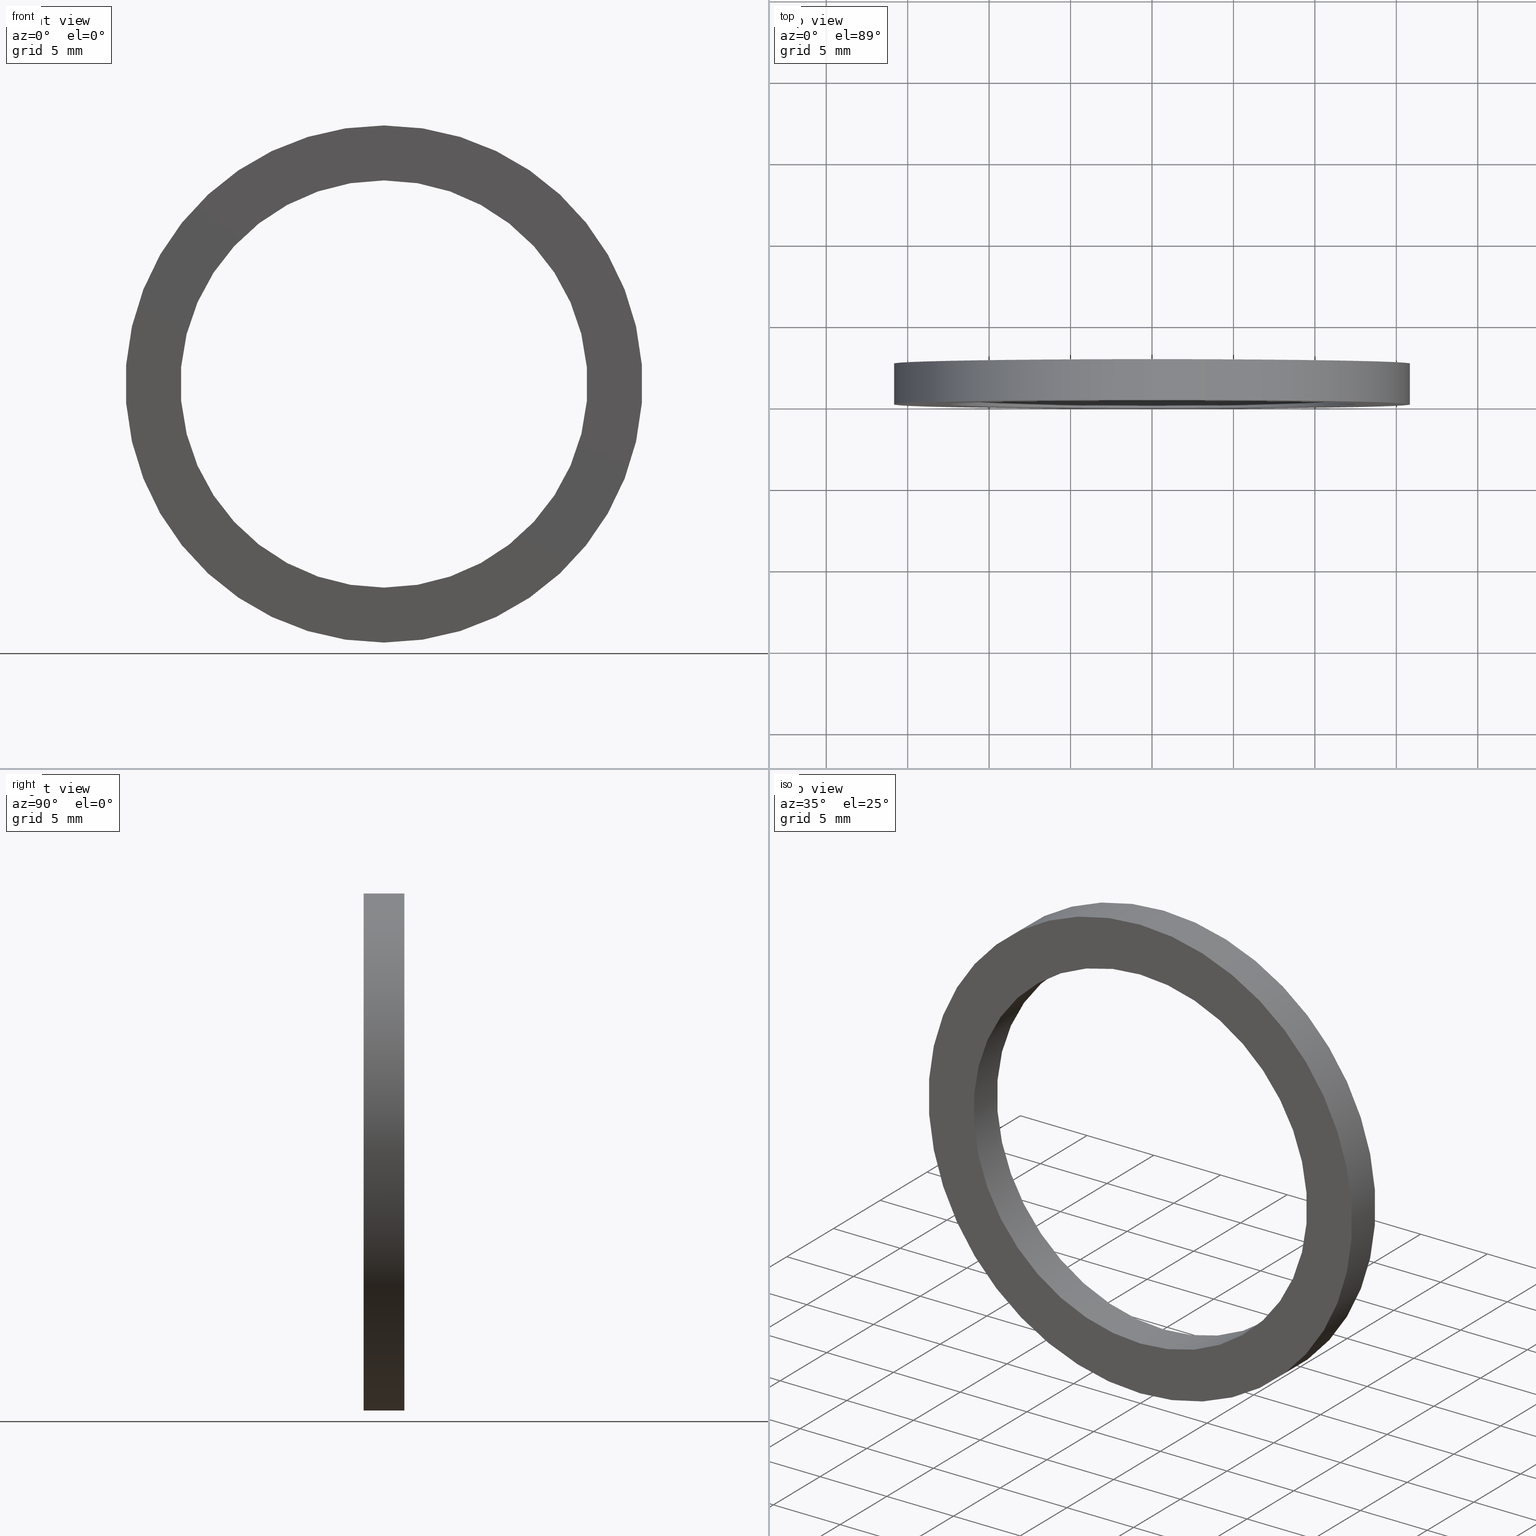
[diagram: canonical four-view strip — front | top / right | iso, engineering-drawing reading convention]
A machine part, canonical four-view strip (front | top / right | iso — engineering-drawing reading convention). The complete STEP part file that produces these views, byte-faithful:
ISO-10303-21;
HEADER;
FILE_DESCRIPTION (( 'STEP AP214' ),
    '1' );
FILE_NAME ('511004.STEP',
    '2019-09-12T08:29:34',
    ( '' ),
    ( '' ),
    'SwSTEP 2.0',
    'SolidWorks 2016',
    '' );
FILE_SCHEMA (( 'AUTOMOTIVE_DESIGN' ));
ENDSEC;

DATA;
#1 = DIRECTION ( 'NONE',  ( -0.0000000000000000000, 1.000000000000000000, -0.0000000000000000000 ) ) ;
#2 = ORIENTED_EDGE ( 'NONE', *, *, #125, .F. ) ;
#3 = SURFACE_STYLE_USAGE ( .BOTH. , #36 ) ;
#4 = CARTESIAN_POINT ( 'NONE',  ( 0.0000000000000000000, 77.14414226561778800, 0.0000000000000000000 ) ) ;
#5 = LINE ( 'NONE', #75, #45 ) ;
#6 =( NAMED_UNIT ( * ) SI_UNIT ( $, .STERADIAN. ) SOLID_ANGLE_UNIT ( ) );
#7 = CARTESIAN_POINT ( 'NONE',  ( 1.944126793646424800E-015, 0.0000000000000000000, -15.87500000000001100 ) ) ;
#8 = AXIS2_PLACEMENT_3D ( 'NONE', #18, #124, #144 ) ;
#9 = APPLICATION_PROTOCOL_DEFINITION ( 'draft international standard', 'automotive_design', 1998, #112 ) ;
#10 = PRESENTATION_LAYER_ASSIGNMENT (  '', '', ( #130 ) ) ;
#11 = ORIENTED_EDGE ( 'NONE', *, *, #232, .F. ) ;
#12 = PRODUCT_DEFINITION_FORMATION_WITH_SPECIFIED_SOURCE ( '�κ�', '', #115, .NOT_KNOWN. ) ;
#13 = VERTEX_POINT ( 'NONE', #177 ) ;
#14 = FACE_OUTER_BOUND ( 'NONE', #170, .T. ) ;
#15 = MECHANICAL_DESIGN_GEOMETRIC_PRESENTATION_REPRESENTATION (  '', ( #230 ), #103 ) ;
#16 =( LENGTH_UNIT ( ) NAMED_UNIT ( * ) SI_UNIT ( .MILLI., .METRE. ) );
#17 = PRESENTATION_LAYER_ASSIGNMENT (  '', '', ( #168 ) ) ;
#18 = CARTESIAN_POINT ( 'NONE',  ( 0.0000000000000000000, 0.0000000000000000000, 0.0000000000000000000 ) ) ;
#19 = PRESENTATION_STYLE_ASSIGNMENT (( #196 ) ) ;
#20 =( NAMED_UNIT ( * ) PLANE_ANGLE_UNIT ( ) SI_UNIT ( $, .RADIAN. ) );
#21 =( NAMED_UNIT ( * ) PLANE_ANGLE_UNIT ( ) SI_UNIT ( $, .RADIAN. ) );
#22 = CARTESIAN_POINT ( 'NONE',  ( 0.0000000000000000000, 0.0000000000000000000, 0.0000000000000000000 ) ) ;
#23 = ORIENTED_EDGE ( 'NONE', *, *, #125, .T. ) ;
#24 = DIRECTION ( 'NONE',  ( 0.0000000000000000000, 0.0000000000000000000, 1.000000000000000000 ) ) ;
#25 = COLOUR_RGB ( '',1.000000000000000000, 1.000000000000000000, 1.000000000000000000 ) ;
#26 = ORIENTED_EDGE ( 'NONE', *, *, #109, .T. ) ;
#27 = ORIENTED_EDGE ( 'NONE', *, *, #46, .T. ) ;
#28 = ADVANCED_FACE ( 'NONE', ( #93 ), #160, .F. ) ;
#29 = ADVANCED_FACE ( 'NONE', ( #14, #152 ), #179, .F. ) ;
#30 = CIRCLE ( 'NONE', #235, 15.87500000000001100 ) ;
#31 = PRESENTATION_LAYER_ASSIGNMENT (  '', '', ( #230 ) ) ;
#32 = ORIENTED_EDGE ( 'NONE', *, *, #148, .T. ) ;
#33 = EDGE_CURVE ( 'NONE', #212, #13, #39, .T. ) ;
#34 = DIRECTION ( 'NONE',  ( -0.0000000000000000000, 1.000000000000000000, -0.0000000000000000000 ) ) ;
#35 = CARTESIAN_POINT ( 'NONE',  ( 0.0000000000000000000, 77.14414226561778800, 12.50000000000001100 ) ) ;
#36 = SURFACE_SIDE_STYLE ('',( #59 ) ) ;
#37 = DIRECTION ( 'NONE',  ( -0.0000000000000000000, 1.000000000000000000, 0.0000000000000000000 ) ) ;
#38 = CARTESIAN_POINT ( 'NONE',  ( 0.0000000000000000000, 2.500000000000002200, 15.87500000000001100 ) ) ;
#39 = CIRCLE ( 'NONE', #172, 12.50000000000001100 ) ;
#40 = PRODUCT_CONTEXT ( 'NONE', #227, 'mechanical' ) ;
#41 =( LENGTH_UNIT ( ) NAMED_UNIT ( * ) SI_UNIT ( .MILLI., .METRE. ) );
#42 = DIRECTION ( 'NONE',  ( -0.0000000000000000000, 1.000000000000000000, -0.0000000000000000000 ) ) ;
#43 = EDGE_LOOP ( 'NONE', ( #199, #26, #117, #102 ) ) ;
#44 = MECHANICAL_DESIGN_GEOMETRIC_PRESENTATION_REPRESENTATION (  '', ( #130 ), #140 ) ;
#45 = VECTOR ( 'NONE', #62, 1000.000000000000000 ) ;
#46 = EDGE_CURVE ( 'NONE', #171, #69, #104, .T. ) ;
#47 = UNCERTAINTY_MEASURE_WITH_UNIT (LENGTH_MEASURE( 1.000000000000000100E-005 ), #77, 'distance_accuracy_value', 'NONE');
#48 = FILL_AREA_STYLE_COLOUR ( '', #200 ) ;
#49 = STYLED_ITEM ( 'NONE', ( #19 ), #28 ) ;
#50 = CIRCLE ( 'NONE', #202, 15.87500000000001100 ) ;
#51 = VERTEX_POINT ( 'NONE', #74 ) ;
#52 = EDGE_LOOP ( 'NONE', ( #153, #23 ) ) ;
#53 = DIRECTION ( 'NONE',  ( 0.0000000000000000000, 0.0000000000000000000, 1.000000000000000000 ) ) ;
#54 = EDGE_CURVE ( 'NONE', #13, #69, #241, .T. ) ;
#55 = DIRECTION ( 'NONE',  ( -0.0000000000000000000, 1.000000000000000000, -0.0000000000000000000 ) ) ;
#56 = EDGE_LOOP ( 'NONE', ( #181, #128 ) ) ;
#57 =( NAMED_UNIT ( * ) SI_UNIT ( $, .STERADIAN. ) SOLID_ANGLE_UNIT ( ) );
#58 = DIRECTION ( 'NONE',  ( 0.0000000000000000000, 0.0000000000000000000, 1.000000000000000000 ) ) ;
#59 = SURFACE_STYLE_FILL_AREA ( #143 ) ;
#60 = PRODUCT_DEFINITION ( 'δ֪', '', #12, #89 ) ;
#61 = SURFACE_STYLE_USAGE ( .BOTH. , #96 ) ;
#62 = DIRECTION ( 'NONE',  ( -0.0000000000000000000, 1.000000000000000000, -0.0000000000000000000 ) ) ;
#63 = ORIENTED_EDGE ( 'NONE', *, *, #186, .F. ) ;
#64 = FILL_AREA_STYLE_COLOUR ( '', #175 ) ;
#65 = PRESENTATION_STYLE_ASSIGNMENT (( #61 ) ) ;
#66 = CLOSED_SHELL ( 'NONE', ( #193, #173, #29, #236, #101, #28 ) ) ;
#67 = AXIS2_PLACEMENT_3D ( 'NONE', #243, #37, #204 ) ;
#68 = ORIENTED_EDGE ( 'NONE', *, *, #134, .F. ) ;
#69 = VERTEX_POINT ( 'NONE', #185 ) ;
#70 = DIRECTION ( 'NONE',  ( 0.0000000000000000000, -1.000000000000000000, 0.0000000000000000000 ) ) ;
#71 = CIRCLE ( 'NONE', #165, 15.87500000000001100 ) ;
#72 = PRODUCT_RELATED_PRODUCT_CATEGORY ( 'part', '', ( #115 ) ) ;
#73 =( NAMED_UNIT ( * ) PLANE_ANGLE_UNIT ( ) SI_UNIT ( $, .RADIAN. ) );
#74 = CARTESIAN_POINT ( 'NONE',  ( 1.944126793646424800E-015, 2.500000000000002200, -15.87500000000001100 ) ) ;
#75 = CARTESIAN_POINT ( 'NONE',  ( 0.0000000000000000000, 77.14414226561778800, 15.87500000000001100 ) ) ;
#76 = VERTEX_POINT ( 'NONE', #92 ) ;
#77 =( LENGTH_UNIT ( ) NAMED_UNIT ( * ) SI_UNIT ( .MILLI., .METRE. ) );
#78 = CARTESIAN_POINT ( 'NONE',  ( 1.530808498934192900E-015, 0.0000000000000000000, -12.50000000000001100 ) ) ;
#79 = DIRECTION ( 'NONE',  ( -0.0000000000000000000, 1.000000000000000000, -0.0000000000000000000 ) ) ;
#80 = CYLINDRICAL_SURFACE ( 'NONE', #218, 15.87500000000001100 ) ;
#81 = ORIENTED_EDGE ( 'NONE', *, *, #119, .F. ) ;
#82 = LINE ( 'NONE', #161, #84 ) ;
#83 = EDGE_CURVE ( 'NONE', #237, #76, #192, .T. ) ;
#84 = VECTOR ( 'NONE', #55, 1000.000000000000000 ) ;
#85 = DIRECTION ( 'NONE',  ( -0.0000000000000000000, 1.000000000000000000, -0.0000000000000000000 ) ) ;
#86 = CARTESIAN_POINT ( 'NONE',  ( 0.0000000000000000000, 2.500000000000002200, 0.0000000000000000000 ) ) ;
#87 = VECTOR ( 'NONE', #1, 1000.000000000000000 ) ;
#88 = CARTESIAN_POINT ( 'NONE',  ( 0.0000000000000000000, 2.500000000000002200, 0.0000000000000000000 ) ) ;
#89 = PRODUCT_DEFINITION_CONTEXT ( 'detailed design', #112, 'design' ) ;
#90 = CYLINDRICAL_SURFACE ( 'NONE', #194, 12.50000000000001100 ) ;
#91 = DIRECTION ( 'NONE',  ( 0.0000000000000000000, -0.0000000000000000000, -1.000000000000000000 ) ) ;
#92 = CARTESIAN_POINT ( 'NONE',  ( 0.0000000000000000000, 0.0000000000000000000, 15.87500000000001100 ) ) ;
#93 = FACE_OUTER_BOUND ( 'NONE', #129, .T. ) ;
#94 =( NAMED_UNIT ( * ) PLANE_ANGLE_UNIT ( ) SI_UNIT ( $, .RADIAN. ) );
#95 = FILL_AREA_STYLE ('',( #150 ) ) ;
#96 = SURFACE_SIDE_STYLE ('',( #137 ) ) ;
#97 = CARTESIAN_POINT ( 'NONE',  ( 1.530808498934192900E-015, 2.500000000000002200, -12.50000000000001100 ) ) ;
#98 = ORIENTED_EDGE ( 'NONE', *, *, #33, .F. ) ;
#99 = DIRECTION ( 'NONE',  ( 0.0000000000000000000, 0.0000000000000000000, 1.000000000000000000 ) ) ;
#100 = CIRCLE ( 'NONE', #207, 12.50000000000001100 ) ;
#101 = ADVANCED_FACE ( 'NONE', ( #135, #141 ), #183, .F. ) ;
#102 = ORIENTED_EDGE ( 'NONE', *, *, #148, .F. ) ;
#103 =( GEOMETRIC_REPRESENTATION_CONTEXT ( 3 ) GLOBAL_UNCERTAINTY_ASSIGNED_CONTEXT ( ( #47 ) ) GLOBAL_UNIT_ASSIGNED_CONTEXT ( ( #77, #94, #208 ) ) REPRESENTATION_CONTEXT ( 'NONE', 'WORKASPACE' ) );
#104 = CIRCLE ( 'NONE', #190, 12.50000000000001100 ) ;
#105 = FILL_AREA_STYLE ('',( #48 ) ) ;
#106 =( LENGTH_UNIT ( ) NAMED_UNIT ( * ) SI_UNIT ( .MILLI., .METRE. ) );
#107 = DIRECTION ( 'NONE',  ( 0.0000000000000000000, 0.0000000000000000000, 1.000000000000000000 ) ) ;
#108 = CARTESIAN_POINT ( 'NONE',  ( 1.530808498934192900E-015, 77.14414226561778800, -12.50000000000001100 ) ) ;
#109 = EDGE_CURVE ( 'NONE', #237, #51, #82, .T. ) ;
#110 = CARTESIAN_POINT ( 'NONE',  ( 0.0000000000000000000, 2.500000000000002200, 0.0000000000000000000 ) ) ;
#111 = DIRECTION ( 'NONE',  ( 0.0000000000000000000, 0.0000000000000000000, 1.000000000000000000 ) ) ;
#112 = APPLICATION_CONTEXT ( 'automotive_design' ) ;
#113 = DIRECTION ( 'NONE',  ( 0.0000000000000000000, 0.0000000000000000000, 1.000000000000000000 ) ) ;
#114 = DIRECTION ( 'NONE',  ( 1.000000000000000000, 0.0000000000000000000, 0.0000000000000000000 ) ) ;
#115 = PRODUCT ( '511004', '511004', '', ( #40 ) ) ;
#116 = AXIS2_PLACEMENT_3D ( 'NONE', #147, #79, #167 ) ;
#117 = ORIENTED_EDGE ( 'NONE', *, *, #136, .F. ) ;
#118 = CIRCLE ( 'NONE', #116, 12.50000000000001100 ) ;
#119 = EDGE_CURVE ( 'NONE', #212, #171, #189, .T. ) ;
#120 = UNCERTAINTY_MEASURE_WITH_UNIT (LENGTH_MEASURE( 1.000000000000000100E-005 ), #106, 'distance_accuracy_value', 'NONE');
#121 = PRESENTATION_STYLE_ASSIGNMENT (( #3 ) ) ;
#122 = MECHANICAL_DESIGN_GEOMETRIC_PRESENTATION_REPRESENTATION (  '', ( #49 ), #146 ) ;
#123 = MANIFOLD_SOLID_BREP ( '��ת1', #66 ) ;
#124 = DIRECTION ( 'NONE',  ( -0.0000000000000000000, 1.000000000000000000, -0.0000000000000000000 ) ) ;
#125 = EDGE_CURVE ( 'NONE', #51, #187, #71, .T. ) ;
#126 = CARTESIAN_POINT ( 'NONE',  ( 0.0000000000000000000, 77.14414226561778800, 0.0000000000000000000 ) ) ;
#127 = DIRECTION ( 'NONE',  ( -0.0000000000000000000, 1.000000000000000000, -0.0000000000000000000 ) ) ;
#128 = ORIENTED_EDGE ( 'NONE', *, *, #33, .T. ) ;
#129 = EDGE_LOOP ( 'NONE', ( #81, #68, #195, #217 ) ) ;
#130 = STYLED_ITEM ( 'NONE', ( #65 ), #157 ) ;
#131 = FACE_OUTER_BOUND ( 'NONE', #158, .T. ) ;
#132 = DIRECTION ( 'NONE',  ( -0.0000000000000000000, 1.000000000000000000, -0.0000000000000000000 ) ) ;
#133 = COLOUR_RGB ( '',1.000000000000000000, 1.000000000000000000, 1.000000000000000000 ) ;
#134 = EDGE_CURVE ( 'NONE', #13, #212, #100, .T. ) ;
#135 = FACE_BOUND ( 'NONE', #164, .T. ) ;
#136 = EDGE_CURVE ( 'NONE', #187, #51, #50, .T. ) ;
#137 = SURFACE_STYLE_FILL_AREA ( #163 ) ;
#138 = ORIENTED_EDGE ( 'NONE', *, *, #54, .F. ) ;
#139 = FACE_OUTER_BOUND ( 'NONE', #43, .T. ) ;
#140 =( GEOMETRIC_REPRESENTATION_CONTEXT ( 3 ) GLOBAL_UNCERTAINTY_ASSIGNED_CONTEXT ( ( #198 ) ) GLOBAL_UNIT_ASSIGNED_CONTEXT ( ( #41, #228, #6 ) ) REPRESENTATION_CONTEXT ( 'NONE', 'WORKASPACE' ) );
#141 = FACE_OUTER_BOUND ( 'NONE', #52, .T. ) ;
#142 =( NAMED_UNIT ( * ) SI_UNIT ( $, .STERADIAN. ) SOLID_ANGLE_UNIT ( ) );
#143 = FILL_AREA_STYLE ('',( #224 ) ) ;
#144 = DIRECTION ( 'NONE',  ( 0.0000000000000000000, 0.0000000000000000000, 1.000000000000000000 ) ) ;
#145 = SURFACE_STYLE_FILL_AREA ( #105 ) ;
#146 =( GEOMETRIC_REPRESENTATION_CONTEXT ( 3 ) GLOBAL_UNCERTAINTY_ASSIGNED_CONTEXT ( ( #120 ) ) GLOBAL_UNIT_ASSIGNED_CONTEXT ( ( #106, #73, #57 ) ) REPRESENTATION_CONTEXT ( 'NONE', 'WORKASPACE' ) );
#147 = CARTESIAN_POINT ( 'NONE',  ( 0.0000000000000000000, 2.500000000000002200, 0.0000000000000000000 ) ) ;
#148 = EDGE_CURVE ( 'NONE', #76, #187, #5, .T. ) ;
#149 =( NAMED_UNIT ( * ) SI_UNIT ( $, .STERADIAN. ) SOLID_ANGLE_UNIT ( ) );
#150 = FILL_AREA_STYLE_COLOUR ( '', #133 ) ;
#151 = SHAPE_DEFINITION_REPRESENTATION ( #234, #157 ) ;
#152 = FACE_BOUND ( 'NONE', #56, .T. ) ;
#153 = ORIENTED_EDGE ( 'NONE', *, *, #136, .T. ) ;
#154 = AXIS2_PLACEMENT_3D ( 'NONE', #244, #70, #91 ) ;
#155 = SURFACE_SIDE_STYLE ('',( #145 ) ) ;
#156 = EDGE_LOOP ( 'NONE', ( #226, #213, #32, #2 ) ) ;
#157 = ADVANCED_BREP_SHAPE_REPRESENTATION ( '511004', ( #123, #211 ), #223 ) ;
#158 = EDGE_LOOP ( 'NONE', ( #98, #215, #27, #138 ) ) ;
#159 = SURFACE_STYLE_FILL_AREA ( #95 ) ;
#160 = CYLINDRICAL_SURFACE ( 'NONE', #238, 12.50000000000001100 ) ;
#161 = CARTESIAN_POINT ( 'NONE',  ( 1.944126793646424800E-015, 77.14414226561778800, -15.87500000000001100 ) ) ;
#162 = DIRECTION ( 'NONE',  ( -0.0000000000000000000, 1.000000000000000000, -0.0000000000000000000 ) ) ;
#163 = FILL_AREA_STYLE ('',( #64 ) ) ;
#164 = EDGE_LOOP ( 'NONE', ( #11, #233 ) ) ;
#165 = AXIS2_PLACEMENT_3D ( 'NONE', #86, #221, #180 ) ;
#166 = VECTOR ( 'NONE', #222, 1000.000000000000000 ) ;
#167 = DIRECTION ( 'NONE',  ( 0.0000000000000000000, 0.0000000000000000000, 1.000000000000000000 ) ) ;
#168 = STYLED_ITEM ( 'NONE', ( #121 ), #123 ) ;
#169 = SURFACE_STYLE_USAGE ( .BOTH. , #206 ) ;
#170 = EDGE_LOOP ( 'NONE', ( #63, #176 ) ) ;
#171 = VERTEX_POINT ( 'NONE', #97 ) ;
#173 = ADVANCED_FACE ( 'NONE', ( #139 ), #178, .T. ) ;
#172 = AXIS2_PLACEMENT_3D ( 'NONE', #203, #201, #53 ) ;
#174 = PRESENTATION_LAYER_ASSIGNMENT (  '', '', ( #49 ) ) ;
#175 = COLOUR_RGB ( '',1.000000000000000000, 1.000000000000000000, 1.000000000000000000 ) ;
#176 = ORIENTED_EDGE ( 'NONE', *, *, #83, .F. ) ;
#177 = CARTESIAN_POINT ( 'NONE',  ( 0.0000000000000000000, 0.0000000000000000000, 12.50000000000001100 ) ) ;
#178 = CYLINDRICAL_SURFACE ( 'NONE', #240, 15.87500000000001100 ) ;
#179 = PLANE ( 'NONE',  #67 ) ;
#180 = DIRECTION ( 'NONE',  ( 0.0000000000000000000, 0.0000000000000000000, 1.000000000000000000 ) ) ;
#181 = ORIENTED_EDGE ( 'NONE', *, *, #134, .T. ) ;
#182 = UNCERTAINTY_MEASURE_WITH_UNIT (LENGTH_MEASURE( 1.000000000000000100E-005 ), #16, 'distance_accuracy_value', 'NONE');
#183 = PLANE ( 'NONE',  #154 ) ;
#184 = CARTESIAN_POINT ( 'NONE',  ( 0.0000000000000000000, 0.0000000000000000000, 0.0000000000000000000 ) ) ;
#185 = CARTESIAN_POINT ( 'NONE',  ( 0.0000000000000000000, 2.500000000000002200, 12.50000000000001100 ) ) ;
#186 = EDGE_CURVE ( 'NONE', #76, #237, #30, .T. ) ;
#187 = VERTEX_POINT ( 'NONE', #38 ) ;
#188 = CARTESIAN_POINT ( 'NONE',  ( 0.0000000000000000000, 0.0000000000000000000, 0.0000000000000000000 ) ) ;
#189 = LINE ( 'NONE', #108, #166 ) ;
#190 = AXIS2_PLACEMENT_3D ( 'NONE', #88, #34, #242 ) ;
#191 =( LENGTH_UNIT ( ) NAMED_UNIT ( * ) SI_UNIT ( .MILLI., .METRE. ) );
#192 = CIRCLE ( 'NONE', #8, 15.87500000000001100 ) ;
#193 = ADVANCED_FACE ( 'NONE', ( #131 ), #90, .F. ) ;
#194 = AXIS2_PLACEMENT_3D ( 'NONE', #4, #162, #58 ) ;
#195 = ORIENTED_EDGE ( 'NONE', *, *, #54, .T. ) ;
#196 = SURFACE_STYLE_USAGE ( .BOTH. , #155 ) ;
#197 =( GEOMETRIC_REPRESENTATION_CONTEXT ( 3 ) GLOBAL_UNCERTAINTY_ASSIGNED_CONTEXT ( ( #182 ) ) GLOBAL_UNIT_ASSIGNED_CONTEXT ( ( #16, #20, #142 ) ) REPRESENTATION_CONTEXT ( 'NONE', 'WORKASPACE' ) );
#198 = UNCERTAINTY_MEASURE_WITH_UNIT (LENGTH_MEASURE( 1.000000000000000100E-005 ), #41, 'distance_accuracy_value', 'NONE');
#199 = ORIENTED_EDGE ( 'NONE', *, *, #186, .T. ) ;
#200 = COLOUR_RGB ( '',1.000000000000000000, 1.000000000000000000, 1.000000000000000000 ) ;
#201 = DIRECTION ( 'NONE',  ( -0.0000000000000000000, 1.000000000000000000, -0.0000000000000000000 ) ) ;
#202 = AXIS2_PLACEMENT_3D ( 'NONE', #110, #132, #111 ) ;
#203 = CARTESIAN_POINT ( 'NONE',  ( 0.0000000000000000000, 0.0000000000000000000, 0.0000000000000000000 ) ) ;
#204 = DIRECTION ( 'NONE',  ( 0.0000000000000000000, 0.0000000000000000000, 1.000000000000000000 ) ) ;
#205 = DIRECTION ( 'NONE',  ( -0.0000000000000000000, 1.000000000000000000, -0.0000000000000000000 ) ) ;
#206 = SURFACE_SIDE_STYLE ('',( #159 ) ) ;
#207 = AXIS2_PLACEMENT_3D ( 'NONE', #184, #127, #209 ) ;
#208 =( NAMED_UNIT ( * ) SI_UNIT ( $, .STERADIAN. ) SOLID_ANGLE_UNIT ( ) );
#209 = DIRECTION ( 'NONE',  ( 0.0000000000000000000, 0.0000000000000000000, 1.000000000000000000 ) ) ;
#210 = PRESENTATION_STYLE_ASSIGNMENT (( #169 ) ) ;
#211 = AXIS2_PLACEMENT_3D ( 'NONE', #22, #99, #114 ) ;
#212 = VERTEX_POINT ( 'NONE', #78 ) ;
#213 = ORIENTED_EDGE ( 'NONE', *, *, #83, .T. ) ;
#214 = MECHANICAL_DESIGN_GEOMETRIC_PRESENTATION_REPRESENTATION (  '', ( #168 ), #197 ) ;
#215 = ORIENTED_EDGE ( 'NONE', *, *, #119, .T. ) ;
#216 = UNCERTAINTY_MEASURE_WITH_UNIT (LENGTH_MEASURE( 1.000000000000000100E-005 ), #191, 'distance_accuracy_value', 'NONE');
#217 = ORIENTED_EDGE ( 'NONE', *, *, #232, .T. ) ;
#218 = AXIS2_PLACEMENT_3D ( 'NONE', #229, #42, #113 ) ;
#219 = FACE_OUTER_BOUND ( 'NONE', #156, .T. ) ;
#220 = DIRECTION ( 'NONE',  ( -0.0000000000000000000, 1.000000000000000000, -0.0000000000000000000 ) ) ;
#221 = DIRECTION ( 'NONE',  ( -0.0000000000000000000, 1.000000000000000000, -0.0000000000000000000 ) ) ;
#222 = DIRECTION ( 'NONE',  ( -0.0000000000000000000, 1.000000000000000000, -0.0000000000000000000 ) ) ;
#223 =( GEOMETRIC_REPRESENTATION_CONTEXT ( 3 ) GLOBAL_UNCERTAINTY_ASSIGNED_CONTEXT ( ( #216 ) ) GLOBAL_UNIT_ASSIGNED_CONTEXT ( ( #191, #21, #149 ) ) REPRESENTATION_CONTEXT ( 'NONE', 'WORKASPACE' ) );
#224 = FILL_AREA_STYLE_COLOUR ( '', #25 ) ;
#225 = DIRECTION ( 'NONE',  ( 0.0000000000000000000, 0.0000000000000000000, 1.000000000000000000 ) ) ;
#226 = ORIENTED_EDGE ( 'NONE', *, *, #109, .F. ) ;
#227 = APPLICATION_CONTEXT ( 'automotive_design' ) ;
#228 =( NAMED_UNIT ( * ) PLANE_ANGLE_UNIT ( ) SI_UNIT ( $, .RADIAN. ) );
#229 = CARTESIAN_POINT ( 'NONE',  ( 0.0000000000000000000, 77.14414226561778800, 0.0000000000000000000 ) ) ;
#230 = STYLED_ITEM ( 'NONE', ( #210 ), #193 ) ;
#231 = APPLICATION_PROTOCOL_DEFINITION ( 'draft international standard', 'automotive_design', 1998, #227 ) ;
#232 = EDGE_CURVE ( 'NONE', #69, #171, #118, .T. ) ;
#233 = ORIENTED_EDGE ( 'NONE', *, *, #46, .F. ) ;
#234 = PRODUCT_DEFINITION_SHAPE ( 'NONE', 'NONE',  #60 ) ;
#235 = AXIS2_PLACEMENT_3D ( 'NONE', #188, #205, #225 ) ;
#236 = ADVANCED_FACE ( 'NONE', ( #219 ), #80, .T. ) ;
#237 = VERTEX_POINT ( 'NONE', #7 ) ;
#238 = AXIS2_PLACEMENT_3D ( 'NONE', #239, #85, #107 ) ;
#239 = CARTESIAN_POINT ( 'NONE',  ( 0.0000000000000000000, 77.14414226561778800, 0.0000000000000000000 ) ) ;
#240 = AXIS2_PLACEMENT_3D ( 'NONE', #126, #220, #24 ) ;
#241 = LINE ( 'NONE', #35, #87 ) ;
#242 = DIRECTION ( 'NONE',  ( 0.0000000000000000000, 0.0000000000000000000, 1.000000000000000000 ) ) ;
#243 = CARTESIAN_POINT ( 'NONE',  ( 12.50000000000001100, 0.0000000000000000000, 0.0000000000000000000 ) ) ;
#244 = CARTESIAN_POINT ( 'NONE',  ( 12.50000000000001100, 2.500000000000000000, 0.0000000000000000000 ) ) ;
ENDSEC;
END-ISO-10303-21;
